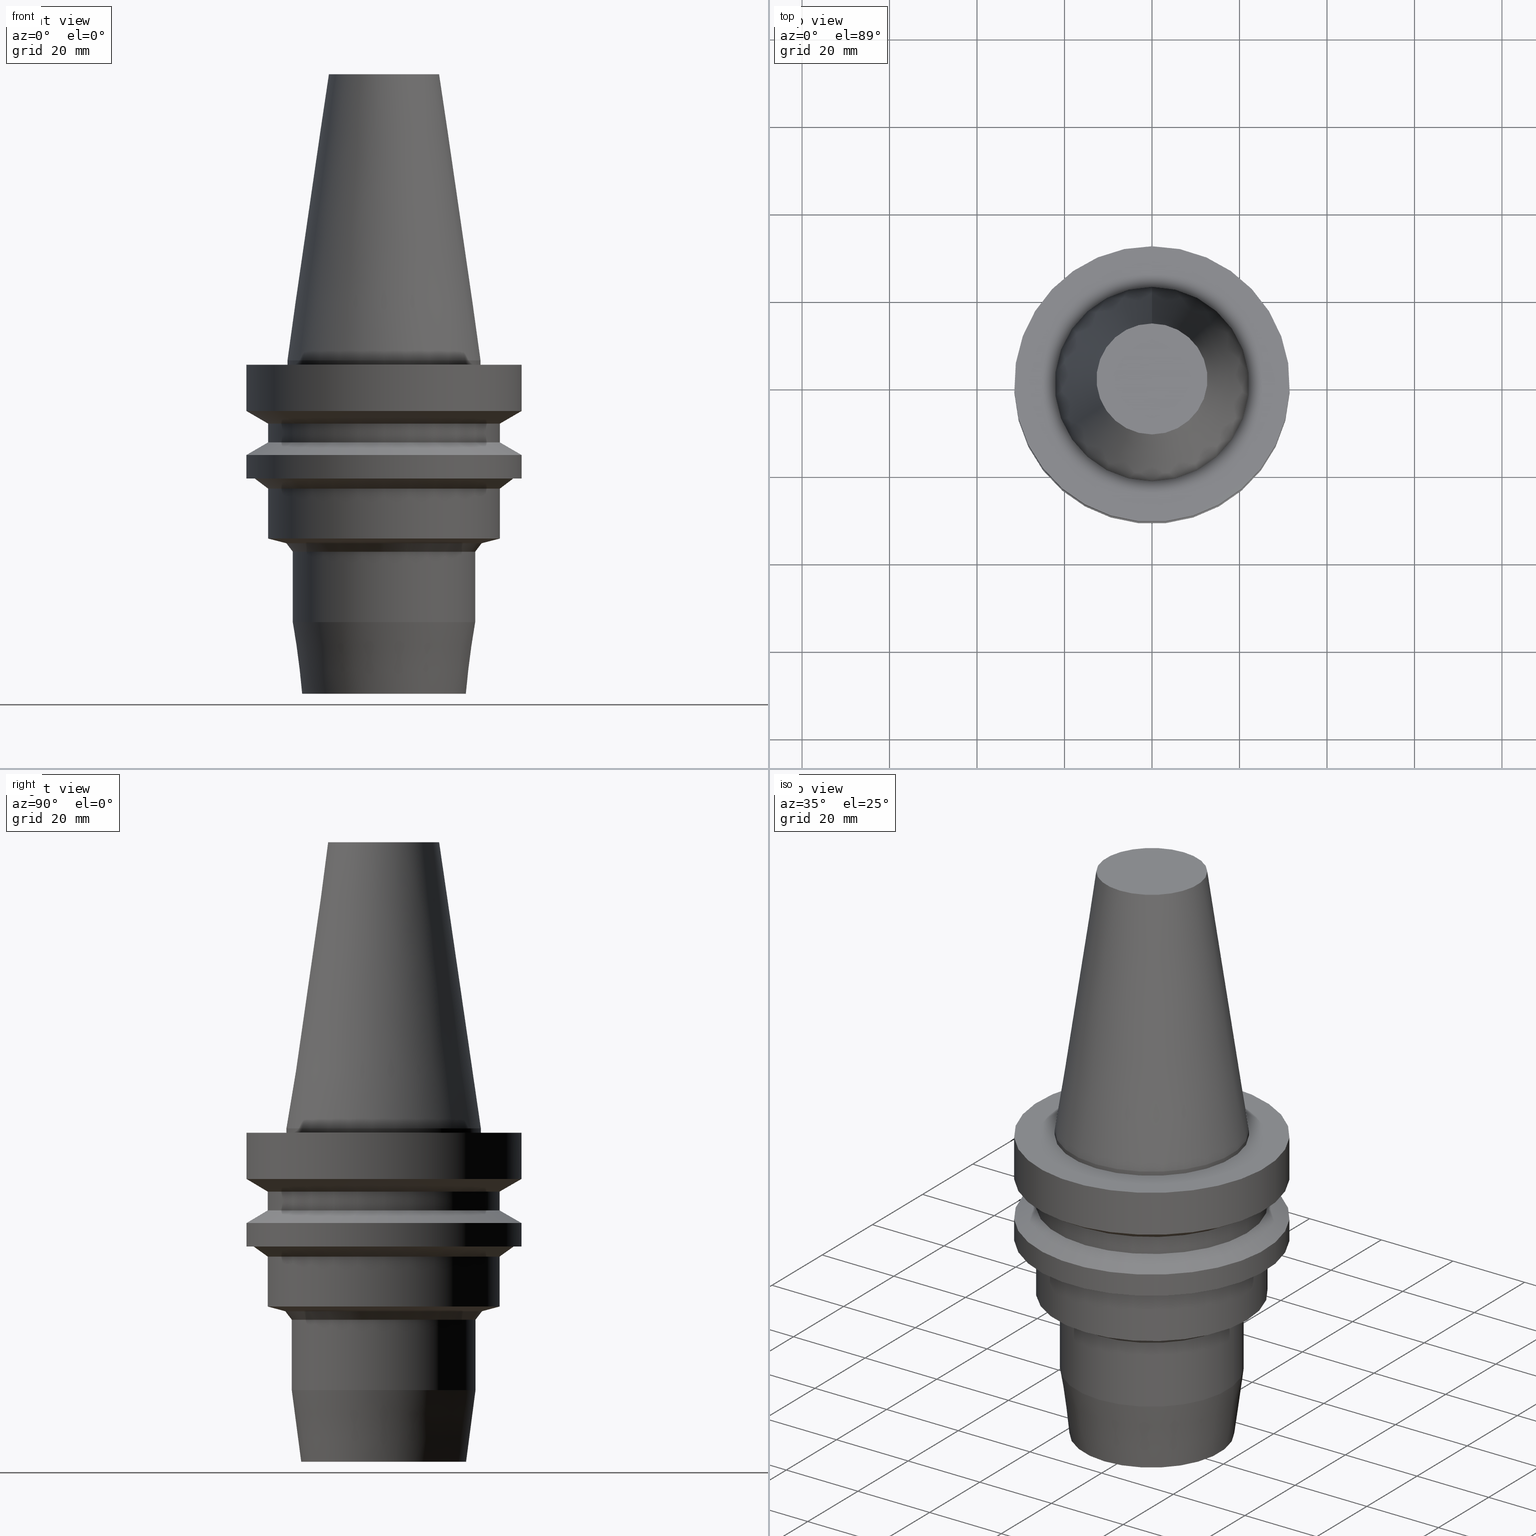
[diagram: canonical four-view strip — front | top / right | iso, engineering-drawing reading convention]
A machine part, canonical four-view strip (front | top / right | iso — engineering-drawing reading convention). The complete STEP part file that produces these views, byte-faithful:
ISO-10303-21;
HEADER;
FILE_DESCRIPTION((''),'1');
FILE_NAME('V:/90_\X2\53D65F9730C730FC30BF\X0\/00_\X2\6DE18DEF30C730FC30BF\X0\/ALL/BBT-BKUS\X2\FF76FF80FF9BFF78FF9E752852A05DE556F3\X0\201801/BBT40-HDC/BBT40-HDC.750-3.stp','2018-02-07T05:16:16',(''),(''),'Spatial Interop R21 SP3','Kubotek KeyCreator 2011 V10.0.2 (22737)',' ');
FILE_SCHEMA(('automotive_design'));
ENDSEC;
DATA;
#1=MECHANICAL_DESIGN_GEOMETRIC_PRESENTATION_REPRESENTATION(' ',(#10,#11,#12,#13,#14,#15,#16,#17,#18,#19,#20,#21,#22,#23,#24,#25,#26,#27,#28,#29,#30,#31,#32,#33,#34,#35,#36,#37,#38,#39,#40,#41,#42,#43),#6);
#2=PRODUCT_DEFINITION_CONTEXT('',#44,'design');
#3=APPLICATION_PROTOCOL_DEFINITION('INTERNATIONAL STANDARD','automotive_design',1994,#44);
#4=PRODUCT_CATEGORY_RELATIONSHIP('NONE','NONE',#45,#46);
#5=SHAPE_DEFINITION_REPRESENTATION(#47,#48);
#6= (GEOMETRIC_REPRESENTATION_CONTEXT(3)GLOBAL_UNCERTAINTY_ASSIGNED_CONTEXT((#51))GLOBAL_UNIT_ASSIGNED_CONTEXT((#53,#54,#55))REPRESENTATION_CONTEXT('NONE','WORKSPACE'));
#10=STYLED_ITEM('',(#57),#58);
#11=STYLED_ITEM('',(#59),#60);
#12=STYLED_ITEM('',(#61,#62),#63);
#13=STYLED_ITEM('',(#64,#65),#66);
#14=STYLED_ITEM('',(#67,#68),#69);
#15=STYLED_ITEM('',(#70,#71),#72);
#16=STYLED_ITEM('',(#73),#74);
#17=STYLED_ITEM('',(#75,#76),#77);
#18=STYLED_ITEM('',(#78,#79),#80);
#19=STYLED_ITEM('',(#81),#82);
#20=STYLED_ITEM('',(#83,#84),#85);
#21=STYLED_ITEM('',(#86,#87),#88);
#22=STYLED_ITEM('',(#89,#90),#91);
#23=STYLED_ITEM('',(#92,#93),#94);
#24=STYLED_ITEM('',(#95),#96);
#25=STYLED_ITEM('',(#97,#98),#99);
#26=STYLED_ITEM('',(#100,#101),#102);
#27=STYLED_ITEM('',(#103),#104);
#28=STYLED_ITEM('',(#105),#106);
#29=STYLED_ITEM('',(#107,#108),#109);
#30=STYLED_ITEM('',(#110),#111);
#31=STYLED_ITEM('',(#112,#113),#114);
#32=STYLED_ITEM('',(#115),#116);
#33=STYLED_ITEM('',(#117,#118),#119);
#34=STYLED_ITEM('',(#120),#121);
#35=STYLED_ITEM('',(#122),#123);
#36=STYLED_ITEM('',(#124),#125);
#37=STYLED_ITEM('',(#126),#127);
#38=STYLED_ITEM('',(#128),#129);
#39=STYLED_ITEM('',(#130),#131);
#40=STYLED_ITEM('',(#132),#133);
#41=STYLED_ITEM('',(#134,#135),#136);
#42=STYLED_ITEM('',(#137,#138),#139);
#43=STYLED_ITEM('',(#140,#141),#142);
#44=APPLICATION_CONTEXT(' ');
#45=PRODUCT_CATEGORY('part','NONE');
#46=PRODUCT_RELATED_PRODUCT_CATEGORY('detail',' ',(#143));
#47=PRODUCT_DEFINITION_SHAPE('NONE','NONE',#144);
#48=ADVANCED_BREP_SHAPE_REPRESENTATION('Unnamed[1]',(#136,#145),#6);
#51=UNCERTAINTY_MEASURE_WITH_UNIT(LENGTH_MEASURE(1.0E-006),#53,'','');
#53= (CONVERSION_BASED_UNIT('MILLIMETRE',#148)LENGTH_UNIT()NAMED_UNIT(#151));
#54= (NAMED_UNIT(#153)PLANE_ANGLE_UNIT()SI_UNIT($,.RADIAN.));
#55= (NAMED_UNIT(#153)SOLID_ANGLE_UNIT()SI_UNIT($,.STERADIAN.));
#57=PRESENTATION_STYLE_ASSIGNMENT((#159));
#58=EDGE_CURVE('Unnamed[1]',#160,#160,#161,.T.);
#59=PRESENTATION_STYLE_ASSIGNMENT((#162));
#60=EDGE_CURVE('Unnamed[1]',#163,#163,#164,.T.);
#61=PRESENTATION_STYLE_ASSIGNMENT((#165));
#62=PRESENTATION_STYLE_ASSIGNMENT((#166));
#63=ADVANCED_FACE('Unnamed[1]',(#167),#168,.T.);
#64=PRESENTATION_STYLE_ASSIGNMENT((#169));
#65=PRESENTATION_STYLE_ASSIGNMENT((#170));
#66=ADVANCED_FACE('Unnamed[1]',(#171,#172),#173,.T.);
#67=PRESENTATION_STYLE_ASSIGNMENT((#174));
#68=PRESENTATION_STYLE_ASSIGNMENT((#175));
#69=ADVANCED_FACE('Unnamed[1]',(#176,#177),#178,.T.);
#70=PRESENTATION_STYLE_ASSIGNMENT((#179));
#71=PRESENTATION_STYLE_ASSIGNMENT((#180));
#72=ADVANCED_FACE('Unnamed[1]',(#181,#182),#183,.T.);
#73=PRESENTATION_STYLE_ASSIGNMENT((#184));
#74=EDGE_CURVE('Unnamed[1]',#185,#185,#186,.T.);
#75=PRESENTATION_STYLE_ASSIGNMENT((#187));
#76=PRESENTATION_STYLE_ASSIGNMENT((#188));
#77=ADVANCED_FACE('Unnamed[1]',(#189,#190),#191,.T.);
#78=PRESENTATION_STYLE_ASSIGNMENT((#192));
#79=PRESENTATION_STYLE_ASSIGNMENT((#193));
#80=ADVANCED_FACE('Unnamed[1]',(#194,#195),#196,.T.);
#81=PRESENTATION_STYLE_ASSIGNMENT((#197));
#82=EDGE_CURVE('Unnamed[1]',#198,#198,#199,.T.);
#83=PRESENTATION_STYLE_ASSIGNMENT((#200));
#84=PRESENTATION_STYLE_ASSIGNMENT((#201));
#85=ADVANCED_FACE('Unnamed[1]',(#202),#203,.T.);
#86=PRESENTATION_STYLE_ASSIGNMENT((#204));
#87=PRESENTATION_STYLE_ASSIGNMENT((#205));
#88=ADVANCED_FACE('Unnamed[1]',(#206,#207),#208,.T.);
#89=PRESENTATION_STYLE_ASSIGNMENT((#209));
#90=PRESENTATION_STYLE_ASSIGNMENT((#210));
#91=ADVANCED_FACE('Unnamed[1]',(#211,#212),#213,.T.);
#92=PRESENTATION_STYLE_ASSIGNMENT((#214));
#93=PRESENTATION_STYLE_ASSIGNMENT((#215));
#94=ADVANCED_FACE('Unnamed[1]',(#216,#217),#218,.T.);
#95=PRESENTATION_STYLE_ASSIGNMENT((#219));
#96=EDGE_CURVE('Unnamed[1]',#220,#220,#221,.T.);
#97=PRESENTATION_STYLE_ASSIGNMENT((#222));
#98=PRESENTATION_STYLE_ASSIGNMENT((#223));
#99=ADVANCED_FACE('Unnamed[1]',(#224,#225),#226,.T.);
#100=PRESENTATION_STYLE_ASSIGNMENT((#227));
#101=PRESENTATION_STYLE_ASSIGNMENT((#228));
#102=ADVANCED_FACE('Unnamed[1]',(#229,#230),#231,.T.);
#103=PRESENTATION_STYLE_ASSIGNMENT((#232));
#104=EDGE_CURVE('Unnamed[1]',#233,#233,#234,.T.);
#105=PRESENTATION_STYLE_ASSIGNMENT((#235));
#106=EDGE_CURVE('Unnamed[1]',#236,#236,#237,.T.);
#107=PRESENTATION_STYLE_ASSIGNMENT((#238));
#108=PRESENTATION_STYLE_ASSIGNMENT((#239));
#109=ADVANCED_FACE('Unnamed[1]',(#240,#241),#242,.T.);
#110=PRESENTATION_STYLE_ASSIGNMENT((#243));
#111=EDGE_CURVE('Unnamed[1]',#244,#244,#245,.T.);
#112=PRESENTATION_STYLE_ASSIGNMENT((#246));
#113=PRESENTATION_STYLE_ASSIGNMENT((#247));
#114=ADVANCED_FACE('Unnamed[1]',(#248,#249),#250,.T.);
#115=PRESENTATION_STYLE_ASSIGNMENT((#251));
#116=EDGE_CURVE('Unnamed[1]',#252,#252,#253,.T.);
#117=PRESENTATION_STYLE_ASSIGNMENT((#254));
#118=PRESENTATION_STYLE_ASSIGNMENT((#255));
#119=ADVANCED_FACE('Unnamed[1]',(#256,#257),#258,.T.);
#120=PRESENTATION_STYLE_ASSIGNMENT((#259));
#121=EDGE_CURVE('Unnamed[1]',#260,#260,#261,.T.);
#122=PRESENTATION_STYLE_ASSIGNMENT((#262));
#123=EDGE_CURVE('Unnamed[1]',#263,#263,#264,.T.);
#124=PRESENTATION_STYLE_ASSIGNMENT((#265));
#125=EDGE_CURVE('Unnamed[1]',#266,#266,#267,.T.);
#126=PRESENTATION_STYLE_ASSIGNMENT((#268));
#127=EDGE_CURVE('Unnamed[1]',#269,#269,#270,.T.);
#128=PRESENTATION_STYLE_ASSIGNMENT((#271));
#129=EDGE_CURVE('Unnamed[1]',#272,#272,#273,.T.);
#130=PRESENTATION_STYLE_ASSIGNMENT((#274));
#131=EDGE_CURVE('Unnamed[1]',#275,#275,#276,.T.);
#132=PRESENTATION_STYLE_ASSIGNMENT((#277));
#133=EDGE_CURVE('Unnamed[1]',#278,#278,#279,.T.);
#134=PRESENTATION_STYLE_ASSIGNMENT((#280));
#135=PRESENTATION_STYLE_ASSIGNMENT((#281));
#136=MANIFOLD_SOLID_BREP('Unnamed[1]',#282);
#137=PRESENTATION_STYLE_ASSIGNMENT((#283));
#138=PRESENTATION_STYLE_ASSIGNMENT((#284));
#139=ADVANCED_FACE('Unnamed[1]',(#285,#286),#287,.T.);
#140=PRESENTATION_STYLE_ASSIGNMENT((#288));
#141=PRESENTATION_STYLE_ASSIGNMENT((#289));
#142=ADVANCED_FACE('Unnamed[1]',(#290,#291),#292,.T.);
#143=PRODUCT('Unnamed[1]','Unnamed[1]','PART-Unnamed[1]-DESC',(#293));
#144=PRODUCT_DEFINITION('NONE','NONE',#294,#2);
#145=AXIS2_PLACEMENT_3D('',#295,#296,#297);
#148=LENGTH_MEASURE_WITH_UNIT(LENGTH_MEASURE(1.0),#298);
#151=DIMENSIONAL_EXPONENTS(1.0,0.0,0.0,0.0,0.0,0.0,0.0);
#153=DIMENSIONAL_EXPONENTS(0.0,0.0,0.0,0.0,0.0,0.0,0.0);
#159=CURVE_STYLE('',#299,POSITIVE_LENGTH_MEASURE(1000.0),#300);
#160=VERTEX_POINT('',#301);
#161=CIRCLE('',#302,31.5000000000007);
#162=CURVE_STYLE('',#303,POSITIVE_LENGTH_MEASURE(1000.0),#304);
#163=VERTEX_POINT('',#305);
#164=CIRCLE('',#306,31.5000000000004);
#165=SURFACE_STYLE_USAGE(.BOTH.,#307);
#166=CURVE_STYLE('',#308,POSITIVE_LENGTH_MEASURE(1000.0),#309);
#167=FACE_OUTER_BOUND('',#310,.T.);
#168=PLANE('',#311);
#169=SURFACE_STYLE_USAGE(.BOTH.,#312);
#170=CURVE_STYLE('',#313,POSITIVE_LENGTH_MEASURE(1000.0),#314);
#171=FACE_BOUND('',#315,.T.);
#172=FACE_BOUND('',#316,.T.);
#173=CONICAL_SURFACE('',#317,17.4562500000001,0.144812498238936);
#174=SURFACE_STYLE_USAGE(.BOTH.,#318);
#175=CURVE_STYLE('',#319,POSITIVE_LENGTH_MEASURE(1000.0),#320);
#176=FACE_BOUND('',#321,.T.);
#177=FACE_BOUND('',#322,.T.);
#178=CONICAL_SURFACE('',#323,29.0000000000004,1.04719755119651);
#179=SURFACE_STYLE_USAGE(.BOTH.,#324);
#180=CURVE_STYLE('',#325,POSITIVE_LENGTH_MEASURE(1000.0),#326);
#181=FACE_BOUND('',#327,.T.);
#182=FACE_BOUND('',#328,.T.);
#183=CONICAL_SURFACE('',#329,19.9227653025984,0.130899693899637);
#184=CURVE_STYLE('',#330,POSITIVE_LENGTH_MEASURE(1000.0),#331);
#185=VERTEX_POINT('',#332);
#186=CIRCLE('',#333,18.8455306051986);
#187=SURFACE_STYLE_USAGE(.BOTH.,#334);
#188=CURVE_STYLE('',#335,POSITIVE_LENGTH_MEASURE(1000.0),#336);
#189=FACE_BOUND('',#337,.T.);
#190=FACE_BOUND('',#338,.T.);
#191=CYLINDRICAL_SURFACE('',#339,31.5);
#192=SURFACE_STYLE_USAGE(.BOTH.,#340);
#193=CURVE_STYLE('',#341,POSITIVE_LENGTH_MEASURE(1000.0),#342);
#194=FACE_BOUND('',#343,.T.);
#195=FACE_BOUND('',#344,.T.);
#196=CONICAL_SURFACE('',#345,28.9999999999999,1.04719755119657);
#197=CURVE_STYLE('',#346,POSITIVE_LENGTH_MEASURE(1000.0),#347);
#198=VERTEX_POINT('',#348);
#199=CIRCLE('',#349,31.5000000000004);
#200=SURFACE_STYLE_USAGE(.BOTH.,#350);
#201=CURVE_STYLE('',#351,POSITIVE_LENGTH_MEASURE(1000.0),#352);
#202=FACE_OUTER_BOUND('',#353,.T.);
#203=PLANE('',#354);
#204=SURFACE_STYLE_USAGE(.BOTH.,#355);
#205=CURVE_STYLE('',#356,POSITIVE_LENGTH_MEASURE(1000.0),#357);
#206=FACE_BOUND('',#358,.T.);
#207=FACE_BOUND('',#359,.T.);
#208=CONICAL_SURFACE('',#360,24.4911809548945,1.30899693899579);
#209=SURFACE_STYLE_USAGE(.BOTH.,#361);
#210=CURVE_STYLE('',#362,POSITIVE_LENGTH_MEASURE(1000.0),#363);
#211=FACE_BOUND('',#364,.T.);
#212=FACE_BOUND('',#365,.T.);
#213=CYLINDRICAL_SURFACE('',#366,20.9999999999961);
#214=SURFACE_STYLE_USAGE(.BOTH.,#367);
#215=CURVE_STYLE('',#368,POSITIVE_LENGTH_MEASURE(1000.0),#369);
#216=FACE_BOUND('',#370,.T.);
#217=FACE_BOUND('',#371,.T.);
#218=CYLINDRICAL_SURFACE('',#372,31.5000000000005);
#219=CURVE_STYLE('',#373,POSITIVE_LENGTH_MEASURE(1000.0),#374);
#220=VERTEX_POINT('',#375);
#221=CIRCLE('',#376,20.9999999999983);
#222=SURFACE_STYLE_USAGE(.BOTH.,#377);
#223=CURVE_STYLE('',#378,POSITIVE_LENGTH_MEASURE(1000.0),#379);
#224=FACE_BOUND('',#380,.T.);
#225=FACE_BOUND('',#381,.T.);
#226=CYLINDRICAL_SURFACE('',#382,26.5);
#227=SURFACE_STYLE_USAGE(.BOTH.,#383);
#228=CURVE_STYLE('',#384,POSITIVE_LENGTH_MEASURE(1000.0),#385);
#229=FACE_BOUND('',#386,.T.);
#230=FACE_OUTER_BOUND('',#387,.T.);
#231=PLANE('',#388);
#232=CURVE_STYLE('',#389,POSITIVE_LENGTH_MEASURE(1000.0),#390);
#233=VERTEX_POINT('',#391);
#234=CIRCLE('',#392,12.6875000000001);
#235=CURVE_STYLE('',#393,POSITIVE_LENGTH_MEASURE(1000.0),#394);
#236=VERTEX_POINT('',#395);
#237=CIRCLE('',#396,26.5);
#238=SURFACE_STYLE_USAGE(.BOTH.,#397);
#239=CURVE_STYLE('',#398,POSITIVE_LENGTH_MEASURE(1000.0),#399);
#240=FACE_BOUND('',#400,.T.);
#241=FACE_BOUND('',#401,.T.);
#242=CONICAL_SURFACE('',#402,21.7411809548915,0.654498469497884);
#243=CURVE_STYLE('',#403,POSITIVE_LENGTH_MEASURE(1000.0),#404);
#244=VERTEX_POINT('',#405);
#245=CIRCLE('',#406,26.4999999999994);
#246=SURFACE_STYLE_USAGE(.BOTH.,#407);
#247=CURVE_STYLE('',#408,POSITIVE_LENGTH_MEASURE(1000.0),#409);
#248=FACE_OUTER_BOUND('',#410,.T.);
#249=FACE_BOUND('',#411,.T.);
#250=PLANE('',#412);
#251=CURVE_STYLE('',#413,POSITIVE_LENGTH_MEASURE(1000.0),#414);
#252=VERTEX_POINT('',#415);
#253=CIRCLE('',#416,26.5);
#254=SURFACE_STYLE_USAGE(.BOTH.,#417);
#255=CURVE_STYLE('',#418,POSITIVE_LENGTH_MEASURE(1000.0),#419);
#256=FACE_BOUND('',#420,.T.);
#257=FACE_BOUND('',#421,.T.);
#258=CYLINDRICAL_SURFACE('',#422,22.225);
#259=CURVE_STYLE('',#423,POSITIVE_LENGTH_MEASURE(1000.0),#424);
#260=VERTEX_POINT('',#425);
#261=CIRCLE('',#426,26.5);
#262=CURVE_STYLE('',#427,POSITIVE_LENGTH_MEASURE(1000.0),#428);
#263=VERTEX_POINT('',#429);
#264=CIRCLE('',#430,22.482361909789);
#265=CURVE_STYLE('',#431,POSITIVE_LENGTH_MEASURE(1000.0),#432);
#266=VERTEX_POINT('',#433);
#267=CIRCLE('',#434,31.4999999999997);
#268=CURVE_STYLE('',#435,POSITIVE_LENGTH_MEASURE(1000.0),#436);
#269=VERTEX_POINT('',#437);
#270=CIRCLE('',#438,22.225);
#271=CURVE_STYLE('',#439,POSITIVE_LENGTH_MEASURE(1000.0),#440);
#272=VERTEX_POINT('',#441);
#273=CIRCLE('',#442,29.7145262827772);
#274=CURVE_STYLE('',#443,POSITIVE_LENGTH_MEASURE(1000.0),#444);
#275=VERTEX_POINT('',#445);
#276=CIRCLE('',#446,22.225);
#277=CURVE_STYLE('',#447,POSITIVE_LENGTH_MEASURE(1000.0),#448);
#278=VERTEX_POINT('',#449);
#279=CIRCLE('',#450,20.999999999994);
#280=SURFACE_STYLE_USAGE(.BOTH.,#451);
#281=CURVE_STYLE('',#452,POSITIVE_LENGTH_MEASURE(1000.0),#453);
#282=CLOSED_SHELL('',(#63,#66,#119,#114,#77,#80,#142,#69,#94,#102,#139,#99,#88,#109,#91,#72,#85));
#283=SURFACE_STYLE_USAGE(.BOTH.,#454);
#284=CURVE_STYLE('',#455,POSITIVE_LENGTH_MEASURE(1000.0),#456);
#285=FACE_BOUND('',#457,.T.);
#286=FACE_BOUND('',#458,.T.);
#287=CONICAL_SURFACE('',#459,28.1072631413886,0.947790517613511);
#288=SURFACE_STYLE_USAGE(.BOTH.,#460);
#289=CURVE_STYLE('',#461,POSITIVE_LENGTH_MEASURE(1000.0),#462);
#290=FACE_BOUND('',#463,.T.);
#291=FACE_BOUND('',#464,.T.);
#292=CYLINDRICAL_SURFACE('',#465,26.4999999999997);
#293=PRODUCT_CONTEXT('',#44,'mechanical');
#294=PRODUCT_DEFINITION_FORMATION_WITH_SPECIFIED_SOURCE(' ','NONE',#143,.NOT_KNOWN.);
#295=CARTESIAN_POINT('',(0.0,0.0,0.0));
#296=DIRECTION('',(0.0,0.0,1.0));
#297=DIRECTION('',(1.0,0.0,0.0));
#298= (NAMED_UNIT(#151)LENGTH_UNIT()SI_UNIT(.MILLI.,.METRE.));
#299=DRAUGHTING_PRE_DEFINED_CURVE_FONT('continuous');
#300=COLOUR_RGB('',0.0,1.0,0.0);
#301=CARTESIAN_POINT('',(1.32473071268174E-015,31.5000000000007,-21.6344943473346));
#302=AXIS2_PLACEMENT_3D('',#467,#468,#469);
#303=DRAUGHTING_PRE_DEFINED_CURVE_FONT('continuous');
#304=COLOUR_RGB('',0.0,1.0,0.0);
#305=CARTESIAN_POINT('',(1.65327317884891E-015,31.5000000000004,-26.9999999999998));
#306=AXIS2_PLACEMENT_3D('',#470,#471,#472);
#307=SURFACE_SIDE_STYLE('',(#473));
#308=DRAUGHTING_PRE_DEFINED_CURVE_FONT('continuous');
#309=COLOUR_RGB('',0.0,1.0,0.0);
#310=EDGE_LOOP('',(#474));
#311=AXIS2_PLACEMENT_3D('',#475,#476,#477);
#312=SURFACE_SIDE_STYLE('',(#478));
#313=DRAUGHTING_PRE_DEFINED_CURVE_FONT('continuous');
#314=COLOUR_RGB('',0.0,1.0,0.0);
#315=EDGE_LOOP('',(#479));
#316=EDGE_LOOP('',(#480));
#317=AXIS2_PLACEMENT_3D('',#481,#482,#483);
#318=SURFACE_SIDE_STYLE('',(#484));
#319=DRAUGHTING_PRE_DEFINED_CURVE_FONT('continuous');
#320=COLOUR_RGB('',0.0,1.0,0.0);
#321=EDGE_LOOP('',(#485));
#322=EDGE_LOOP('',(#486));
#323=AXIS2_PLACEMENT_3D('',#487,#488,#489);
#324=SURFACE_SIDE_STYLE('',(#490));
#325=DRAUGHTING_PRE_DEFINED_CURVE_FONT('continuous');
#326=COLOUR_RGB('',0.0,1.0,0.0);
#327=EDGE_LOOP('',(#491));
#328=EDGE_LOOP('',(#492));
#329=AXIS2_PLACEMENT_3D('',#493,#494,#495);
#330=DRAUGHTING_PRE_DEFINED_CURVE_FONT('continuous');
#331=COLOUR_RGB('',0.0,1.0,0.0);
#332=CARTESIAN_POINT('',(4.66591020610428E-015,18.8455306051986,-76.2000963764062));
#333=AXIS2_PLACEMENT_3D('',#496,#497,#498);
#334=SURFACE_SIDE_STYLE('',(#499));
#335=DRAUGHTING_PRE_DEFINED_CURVE_FONT('continuous');
#336=COLOUR_RGB('',0.0,1.0,0.0);
#337=EDGE_LOOP('',(#500));
#338=EDGE_LOOP('',(#501));
#339=AXIS2_PLACEMENT_3D('',#502,#503,#504);
#340=SURFACE_SIDE_STYLE('',(#505));
#341=DRAUGHTING_PRE_DEFINED_CURVE_FONT('continuous');
#342=COLOUR_RGB('',0.0,1.0,0.0);
#343=EDGE_LOOP('',(#506));
#344=EDGE_LOOP('',(#507));
#345=AXIS2_PLACEMENT_3D('',#508,#509,#510);
#346=DRAUGHTING_PRE_DEFINED_CURVE_FONT('continuous');
#347=COLOUR_RGB('',0.0,1.0,0.0);
#348=CARTESIAN_POINT('',(7.08182973902924E-016,31.5000000000004,-11.5655056526664));
#349=AXIS2_PLACEMENT_3D('',#511,#512,#513);
#350=SURFACE_SIDE_STYLE('',(#514));
#351=DRAUGHTING_PRE_DEFINED_CURVE_FONT('continuous');
#352=COLOUR_RGB('',0.0,1.0,0.0);
#353=EDGE_LOOP('',(#515));
#354=AXIS2_PLACEMENT_3D('',#516,#517,#518);
#355=SURFACE_SIDE_STYLE('',(#519));
#356=DRAUGHTING_PRE_DEFINED_CURVE_FONT('continuous');
#357=COLOUR_RGB('',0.0,1.0,0.0);
#358=EDGE_LOOP('',(#520));
#359=EDGE_LOOP('',(#521));
#360=AXIS2_PLACEMENT_3D('',#522,#523,#524);
#361=SURFACE_SIDE_STYLE('',(#525));
#362=DRAUGHTING_PRE_DEFINED_CURVE_FONT('continuous');
#363=COLOUR_RGB('',0.0,1.0,0.0);
#364=EDGE_LOOP('',(#526));
#365=EDGE_LOOP('',(#527));
#366=AXIS2_PLACEMENT_3D('',#528,#529,#530);
#367=SURFACE_SIDE_STYLE('',(#531));
#368=DRAUGHTING_PRE_DEFINED_CURVE_FONT('continuous');
#369=COLOUR_RGB('',0.0,1.0,0.0);
#370=EDGE_LOOP('',(#532));
#371=EDGE_LOOP('',(#533));
#372=AXIS2_PLACEMENT_3D('',#534,#535,#536);
#373=DRAUGHTING_PRE_DEFINED_CURVE_FONT('continuous');
#374=COLOUR_RGB('',0.0,1.0,0.0);
#375=CARTESIAN_POINT('',(3.66385399883422E-015,20.9999999999983,-59.8352766101237));
#376=AXIS2_PLACEMENT_3D('',#537,#538,#539);
#377=SURFACE_SIDE_STYLE('',(#540));
#378=DRAUGHTING_PRE_DEFINED_CURVE_FONT('continuous');
#379=COLOUR_RGB('',0.0,1.0,0.0);
#380=EDGE_LOOP('',(#541));
#381=EDGE_LOOP('',(#542));
#382=AXIS2_PLACEMENT_3D('',#543,#544,#545);
#383=SURFACE_SIDE_STYLE('',(#546));
#384=DRAUGHTING_PRE_DEFINED_CURVE_FONT('continuous');
#385=COLOUR_RGB('',0.0,1.0,0.0);
#386=EDGE_LOOP('',(#547));
#387=EDGE_LOOP('',(#548));
#388=AXIS2_PLACEMENT_3D('',#549,#550,#551);
#389=DRAUGHTING_PRE_DEFINED_CURVE_FONT('continuous');
#390=COLOUR_RGB('',0.0,1.0,0.0);
#391=CARTESIAN_POINT('',(-4.00459503321185E-015,12.6875000000002,65.4000000000001));
#392=AXIS2_PLACEMENT_3D('',#552,#553,#554);
#393=DRAUGHTING_PRE_DEFINED_CURVE_FONT('continuous');
#394=COLOUR_RGB('',0.0,1.0,0.0);
#395=CARTESIAN_POINT('',(1.79468911203177E-015,26.5,-29.3094974531644));
#396=AXIS2_PLACEMENT_3D('',#555,#556,#557);
#397=SURFACE_SIDE_STYLE('',(#558));
#398=DRAUGHTING_PRE_DEFINED_CURVE_FONT('continuous');
#399=COLOUR_RGB('',0.0,1.0,0.0);
#400=EDGE_LOOP('',(#559));
#401=EDGE_LOOP('',(#560));
#402=AXIS2_PLACEMENT_3D('',#561,#562,#563);
#403=DRAUGHTING_PRE_DEFINED_CURVE_FONT('continuous');
#404=COLOUR_RGB('',0.0,1.0,0.0);
#405=CARTESIAN_POINT('',(8.8494551369045E-016,26.4999999999995,-14.4522569986152));
#406=AXIS2_PLACEMENT_3D('',#564,#565,#566);
#407=SURFACE_SIDE_STYLE('',(#567));
#408=DRAUGHTING_PRE_DEFINED_CURVE_FONT('continuous');
#409=COLOUR_RGB('',0.0,1.0,0.0);
#410=EDGE_LOOP('',(#568));
#411=EDGE_LOOP('',(#569));
#412=AXIS2_PLACEMENT_3D('',#570,#571,#572);
#413=DRAUGHTING_PRE_DEFINED_CURVE_FONT('continuous');
#414=COLOUR_RGB('',0.0,1.0,0.0);
#415=CARTESIAN_POINT('',(1.1479681728942E-015,26.5,-18.7477430013855));
#416=AXIS2_PLACEMENT_3D('',#573,#574,#575);
#417=SURFACE_SIDE_STYLE('',(#576));
#418=DRAUGHTING_PRE_DEFINED_CURVE_FONT('continuous');
#419=COLOUR_RGB('',0.0,1.0,0.0);
#420=EDGE_LOOP('',(#577));
#421=EDGE_LOOP('',(#578));
#422=AXIS2_PLACEMENT_3D('',#579,#580,#581);
#423=DRAUGHTING_PRE_DEFINED_CURVE_FONT('continuous');
#424=COLOUR_RGB('',0.0,1.0,0.0);
#425=CARTESIAN_POINT('',(2.49377128932141E-015,26.5,-40.7263758180345));
#426=AXIS2_PLACEMENT_3D('',#582,#583,#584);
#427=DRAUGHTING_PRE_DEFINED_CURVE_FONT('continuous');
#428=COLOUR_RGB('',0.0,1.0,0.0);
#429=CARTESIAN_POINT('',(2.55968930438875E-015,22.482361909789,-41.8028986997869));
#430=AXIS2_PLACEMENT_3D('',#585,#586,#587);
#431=DRAUGHTING_PRE_DEFINED_CURVE_FONT('continuous');
#432=COLOUR_RGB('',0.0,1.0,0.0);
#433=CARTESIAN_POINT('',(6.12323399573568E-017,31.4999999999997,-0.999999999999825));
#434=AXIS2_PLACEMENT_3D('',#588,#589,#590);
#435=DRAUGHTING_PRE_DEFINED_CURVE_FONT('continuous');
#436=COLOUR_RGB('',0.0,1.0,0.0);
#437=CARTESIAN_POINT('',(6.12323399573622E-017,22.2250000000001,-0.999999999999912));
#438=AXIS2_PLACEMENT_3D('',#591,#592,#593);
#439=DRAUGHTING_PRE_DEFINED_CURVE_FONT('continuous');
#440=COLOUR_RGB('',0.0,1.0,0.0);
#441=CARTESIAN_POINT('',(1.65327317884891E-015,29.7145262827772,-26.9999999999998));
#442=AXIS2_PLACEMENT_3D('',#594,#595,#596);
#443=DRAUGHTING_PRE_DEFINED_CURVE_FONT('continuous');
#444=COLOUR_RGB('',0.0,1.0,0.0);
#445=CARTESIAN_POINT('',(1.71319921032766E-029,22.2250000000001,-2.8153873565375E-013));
#446=AXIS2_PLACEMENT_3D('',#597,#598,#599);
#447=DRAUGHTING_PRE_DEFINED_CURVE_FONT('continuous');
#448=COLOUR_RGB('',0.0,1.0,0.0);
#449=CARTESIAN_POINT('',(2.67798110152662E-015,20.999999999994,-43.7347503523651));
#450=AXIS2_PLACEMENT_3D('',#600,#601,#602);
#451=SURFACE_SIDE_STYLE('',(#603));
#452=DRAUGHTING_PRE_DEFINED_CURVE_FONT('continuous');
#453=COLOUR_RGB('',0.0,1.0,0.0);
#454=SURFACE_SIDE_STYLE('',(#604));
#455=DRAUGHTING_PRE_DEFINED_CURVE_FONT('continuous');
#456=COLOUR_RGB('',0.0,1.0,0.0);
#457=EDGE_LOOP('',(#605));
#458=EDGE_LOOP('',(#606));
#459=AXIS2_PLACEMENT_3D('',#607,#608,#609);
#460=SURFACE_SIDE_STYLE('',(#610));
#461=DRAUGHTING_PRE_DEFINED_CURVE_FONT('continuous');
#462=COLOUR_RGB('',0.0,1.0,0.0);
#463=EDGE_LOOP('',(#611));
#464=EDGE_LOOP('',(#612));
#465=AXIS2_PLACEMENT_3D('',#613,#614,#615);
#467=CARTESIAN_POINT('',(1.32473071268174E-015,1.81843579211261E-014,-21.6344943473346));
#468=DIRECTION('',(6.12323399573677E-017,-6.70009952006012E-016,-1.0));
#469=DIRECTION('',(3.61991244252829E-032,1.0,-6.70009952006012E-016));
#470=CARTESIAN_POINT('',(1.65327317884891E-015,1.45894157362957E-014,-26.9999999999997));
#471=DIRECTION('',(6.12323399573676E-017,-6.70009952006019E-016,-1.0));
#472=DIRECTION('',(3.6199124425289E-032,1.0,-6.70009952006019E-016));
#473=SURFACE_STYLE_FILL_AREA(#616);
#474=ORIENTED_EDGE('',*,*,#104,.F.);
#475=CARTESIAN_POINT('',(-4.00459503321185E-015,6.34375000000014,65.4000000000001));
#476=DIRECTION('',(-6.12323399573677E-017,9.97602686800683E-016,1.0));
#477=DIRECTION('',(-5.62583941297938E-032,-1.0,9.97602686800683E-016));
#478=SURFACE_STYLE_FILL_AREA(#617);
#479=ORIENTED_EDGE('',*,*,#131,.F.);
#480=ORIENTED_EDGE('',*,*,#104,.T.);
#481=CARTESIAN_POINT('',(-2.00229751660592E-015,5.45890098710572E-014,32.6999999999999));
#482=DIRECTION('',(6.12323399573677E-017,-6.70009952006028E-016,-1.0));
#483=DIRECTION('',(3.61991244252817E-032,1.0,-6.70009952006028E-016));
#484=SURFACE_STYLE_FILL_AREA(#618);
#485=ORIENTED_EDGE('',*,*,#58,.F.);
#486=ORIENTED_EDGE('',*,*,#116,.T.);
#487=CARTESIAN_POINT('',(1.23634944278797E-015,1.91514339865025E-014,-20.1911186743601));
#488=DIRECTION('',(6.12323399573677E-017,-6.7000995200607E-016,-1.0));
#489=DIRECTION('',(3.61991244252855E-032,1.0,-6.7000995200607E-016));
#490=SURFACE_STYLE_FILL_AREA(#619);
#491=ORIENTED_EDGE('',*,*,#74,.F.);
#492=ORIENTED_EDGE('',*,*,#96,.T.);
#493=CARTESIAN_POINT('',(4.16488210246925E-015,-1.28928424224564E-014,-68.0176864932649));
#494=DIRECTION('',(-6.12323399573677E-017,6.70009952006047E-016,1.0));
#495=DIRECTION('',(3.61991244252895E-032,1.0,-6.70009952006047E-016));
#496=CARTESIAN_POINT('',(4.66591020610428E-015,-1.83751384755538E-014,-76.2000963764062));
#497=DIRECTION('',(6.12323399573676E-017,-6.70009952006037E-016,-1.0));
#498=DIRECTION('',(3.61991244252815E-032,1.0,-6.70009952006037E-016));
#499=SURFACE_STYLE_FILL_AREA(#620);
#500=ORIENTED_EDGE('',*,*,#82,.F.);
#501=ORIENTED_EDGE('',*,*,#125,.T.);
#502=CARTESIAN_POINT('',(3.84707656930139E-016,2.84701775208218E-014,-6.28275282633307));
#503=DIRECTION('',(6.12323399573677E-017,-6.70009952006027E-016,-1.0));
#504=DIRECTION('',(3.61991244252894E-032,1.0,-6.70009952006027E-016));
#505=SURFACE_STYLE_FILL_AREA(#621);
#506=ORIENTED_EDGE('',*,*,#111,.F.);
#507=ORIENTED_EDGE('',*,*,#82,.T.);
#508=CARTESIAN_POINT('',(7.96564243796686E-016,2.39636044878141E-014,-13.0088813256408));
#509=DIRECTION('',(-6.12323399573677E-017,6.7000995200608E-016,1.0));
#510=DIRECTION('',(3.6199124425286E-032,1.0,-6.7000995200608E-016));
#511=CARTESIAN_POINT('',(7.08182973902922E-016,2.49306805531904E-014,-11.5655056526663));
#512=DIRECTION('',(6.12323399573677E-017,-6.70009952006019E-016,-1.0));
#513=DIRECTION('',(3.61991244252833E-032,1.0,-6.70009952006019E-016));
#514=SURFACE_STYLE_FILL_AREA(#622);
#515=ORIENTED_EDGE('',*,*,#74,.T.);
#516=CARTESIAN_POINT('',(4.6659102061043E-015,9.42276530259926,-76.2000963764064));
#517=DIRECTION('',(6.12323399573677E-017,2.27445733584816E-014,-1.0));
#518=DIRECTION('',(-1.3975306008026E-030,1.0,2.27445733584816E-014));
#519=SURFACE_STYLE_FILL_AREA(#623);
#520=ORIENTED_EDGE('',*,*,#123,.F.);
#521=ORIENTED_EDGE('',*,*,#121,.T.);
#522=CARTESIAN_POINT('',(2.52673029685508E-015,5.03196681106894E-015,-41.2646372589107));
#523=DIRECTION('',(-6.12323399573677E-017,6.70009952006086E-016,1.0));
#524=DIRECTION('',(3.61991244252889E-032,1.0,-6.70009952006086E-016));
#525=SURFACE_STYLE_FILL_AREA(#624);
#526=ORIENTED_EDGE('',*,*,#96,.F.);
#527=ORIENTED_EDGE('',*,*,#133,.T.);
#528=CARTESIAN_POINT('',(3.17091755018042E-015,-2.01678995674251E-015,-51.7850134812444));
#529=DIRECTION('',(6.12323399573677E-017,-6.70009952006048E-016,-1.0));
#530=DIRECTION('',(3.61991244252876E-032,1.0,-6.70009952006048E-016));
#531=SURFACE_STYLE_FILL_AREA(#625);
#532=ORIENTED_EDGE('',*,*,#60,.F.);
#533=ORIENTED_EDGE('',*,*,#58,.T.);
#534=CARTESIAN_POINT('',(1.48900194576533E-015,1.63868868287109E-014,-24.3172471736672));
#535=DIRECTION('',(6.12323399573677E-017,-6.70009952006015E-016,-1.0));
#536=DIRECTION('',(3.61991244252831E-032,1.0,-6.70009952006015E-016));
#537=CARTESIAN_POINT('',(3.66385399883422E-015,-7.41054636935907E-015,-59.8352766101237));
#538=DIRECTION('',(6.12323399573676E-017,-6.70009952006056E-016,-1.0));
#539=DIRECTION('',(3.61991244252838E-032,1.0,-6.70009952006056E-016));
#540=SURFACE_STYLE_FILL_AREA(#626);
#541=ORIENTED_EDGE('',*,*,#121,.F.);
#542=ORIENTED_EDGE('',*,*,#106,.T.);
#543=CARTESIAN_POINT('',(2.14423020067659E-015,9.21731839588993E-015,-35.0179366355995));
#544=DIRECTION('',(6.12323399573677E-017,-6.70009952006017E-016,-1.0));
#545=DIRECTION('',(3.61991244252885E-032,1.0,-6.70009952006017E-016));
#546=SURFACE_STYLE_FILL_AREA(#627);
#547=ORIENTED_EDGE('',*,*,#129,.F.);
#548=ORIENTED_EDGE('',*,*,#60,.T.);
#549=CARTESIAN_POINT('',(1.65327317884891E-015,30.6072631413888,-26.9999999999998));
#550=DIRECTION('',(6.12323399573677E-017,6.09182784308547E-015,-1.0));
#551=DIRECTION('',(-3.77844026180336E-031,1.0,6.09182784308547E-015));
#552=CARTESIAN_POINT('',(-4.00459503321185E-015,7.64983353016554E-014,65.4000000000001));
#553=DIRECTION('',(6.12323399573677E-017,-6.70009952006024E-016,-1.0));
#554=DIRECTION('',(3.61991244252803E-032,1.0,-6.70009952006024E-016));
#555=CARTESIAN_POINT('',(1.79468911203176E-015,1.30420294585427E-014,-29.3094974531644));
#556=DIRECTION('',(6.12323399573677E-017,-6.70009952006017E-016,-1.0));
#557=DIRECTION('',(3.61991244252817E-032,1.0,-6.70009952006017E-016));
#558=SURFACE_STYLE_FILL_AREA(#628);
#559=ORIENTED_EDGE('',*,*,#133,.F.);
#560=ORIENTED_EDGE('',*,*,#123,.T.);
#561=CARTESIAN_POINT('',(2.61883520295769E-015,4.02414637238741E-015,-42.768824526076));
#562=DIRECTION('',(-6.12323399573677E-017,6.70009952006068E-016,1.0));
#563=DIRECTION('',(3.61991244252861E-032,1.0,-6.70009952006068E-016));
#564=CARTESIAN_POINT('',(8.84945513690449E-016,2.29965284224378E-014,-14.4522569986152));
#565=DIRECTION('',(6.12323399573677E-017,-6.70009952006031E-016,-1.0));
#566=DIRECTION('',(3.61991244252892E-032,1.0,-6.70009952006031E-016));
#567=SURFACE_STYLE_FILL_AREA(#629);
#568=ORIENTED_EDGE('',*,*,#125,.F.);
#569=ORIENTED_EDGE('',*,*,#127,.T.);
#570=CARTESIAN_POINT('',(6.12323399573595E-017,26.8624999999999,-0.999999999999869));
#571=DIRECTION('',(-6.12323399573677E-017,-9.35138060429241E-015,1.0));
#572=DIRECTION('',(5.77434068963536E-031,-1.0,-9.35138060429241E-015));
#573=CARTESIAN_POINT('',(1.1479681728942E-015,2.01185100518789E-014,-18.7477430013855));
#574=DIRECTION('',(6.12323399573677E-017,-6.70009952006017E-016,-1.0));
#575=DIRECTION('',(3.61991244252884E-032,1.0,-6.70009952006017E-016));
#576=SURFACE_STYLE_FILL_AREA(#630);
#577=ORIENTED_EDGE('',*,*,#127,.F.);
#578=ORIENTED_EDGE('',*,*,#131,.T.);
#579=CARTESIAN_POINT('',(3.06161699786891E-017,3.2344679464456E-014,-0.500000000000085));
#580=DIRECTION('',(6.12323399573676E-017,-6.7000995200603E-016,-1.0));
#581=DIRECTION('',(3.61991244252785E-032,1.0,-6.7000995200603E-016));
#582=CARTESIAN_POINT('',(2.49377128932141E-015,5.39260733323711E-015,-40.7263758180345));
#583=DIRECTION('',(6.12323399573677E-017,-6.70009952006018E-016,-1.0));
#584=DIRECTION('',(3.61991244252817E-032,1.0,-6.70009952006018E-016));
#585=CARTESIAN_POINT('',(2.55968930438875E-015,4.67132628890078E-015,-41.8028986997869));
#586=DIRECTION('',(6.12323399573677E-017,-6.70009952006023E-016,-1.0));
#587=DIRECTION('',(3.61991244252813E-032,1.0,-6.70009952006023E-016));
#588=CARTESIAN_POINT('',(6.12323399573555E-017,3.20096744884532E-014,-0.999999999999801));
#589=DIRECTION('',(6.12323399573677E-017,-6.70009952006034E-016,-1.0));
#590=DIRECTION('',(3.61991244252898E-032,1.0,-6.70009952006034E-016));
#591=CARTESIAN_POINT('',(6.12323399573616E-017,3.20096744884531E-014,-0.999999999999901));
#592=DIRECTION('',(6.12323399573676E-017,-6.7000995200603E-016,-1.0));
#593=DIRECTION('',(3.61991244252785E-032,1.0,-6.7000995200603E-016));
#594=CARTESIAN_POINT('',(1.65327317884891E-015,1.45894157362957E-014,-26.9999999999998));
#595=DIRECTION('',(6.12323399573677E-017,-6.70009952006041E-016,-1.0));
#596=DIRECTION('',(3.61991244252807E-032,1.0,-6.70009952006041E-016));
#597=CARTESIAN_POINT('',(1.65331138531142E-029,3.2679684440459E-014,-2.70006239588838E-013));
#598=DIRECTION('',(6.12323399573676E-017,-6.7000995200603E-016,-1.0));
#599=DIRECTION('',(3.61991244252785E-032,1.0,-6.7000995200603E-016));
#600=CARTESIAN_POINT('',(2.67798110152662E-015,3.37696645587404E-015,-43.7347503523651));
#601=DIRECTION('',(6.12323399573677E-017,-6.70009952006039E-016,-1.0));
#602=DIRECTION('',(3.6199124425287E-032,1.0,-6.70009952006039E-016));
#603=SURFACE_STYLE_FILL_AREA(#631);
#604=SURFACE_STYLE_FILL_AREA(#632);
#605=ORIENTED_EDGE('',*,*,#106,.F.);
#606=ORIENTED_EDGE('',*,*,#129,.T.);
#607=CARTESIAN_POINT('',(1.72398114544034E-015,1.38157225974192E-014,-28.1547487265821));
#608=DIRECTION('',(-6.12323399573677E-017,6.70009952006029E-016,1.0));
#609=DIRECTION('',(3.61991244252907E-032,1.0,-6.70009952006029E-016));
#610=SURFACE_STYLE_FILL_AREA(#633);
#611=ORIENTED_EDGE('',*,*,#116,.F.);
#612=ORIENTED_EDGE('',*,*,#111,.T.);
#613=CARTESIAN_POINT('',(1.01645684329232E-015,2.15575192371583E-014,-16.6000000000003));
#614=DIRECTION('',(6.12323399573677E-017,-6.70009952006024E-016,-1.0));
#615=DIRECTION('',(3.61991244252821E-032,1.0,-6.70009952006024E-016));
#616=FILL_AREA_STYLE('',(#634));
#617=FILL_AREA_STYLE('',(#635));
#618=FILL_AREA_STYLE('',(#636));
#619=FILL_AREA_STYLE('',(#637));
#620=FILL_AREA_STYLE('',(#638));
#621=FILL_AREA_STYLE('',(#639));
#622=FILL_AREA_STYLE('',(#640));
#623=FILL_AREA_STYLE('',(#641));
#624=FILL_AREA_STYLE('',(#642));
#625=FILL_AREA_STYLE('',(#643));
#626=FILL_AREA_STYLE('',(#644));
#627=FILL_AREA_STYLE('',(#645));
#628=FILL_AREA_STYLE('',(#646));
#629=FILL_AREA_STYLE('',(#647));
#630=FILL_AREA_STYLE('',(#648));
#631=FILL_AREA_STYLE('',(#649));
#632=FILL_AREA_STYLE('',(#650));
#633=FILL_AREA_STYLE('',(#651));
#634=FILL_AREA_STYLE_COLOUR('',#652);
#635=FILL_AREA_STYLE_COLOUR('',#653);
#636=FILL_AREA_STYLE_COLOUR('',#654);
#637=FILL_AREA_STYLE_COLOUR('',#655);
#638=FILL_AREA_STYLE_COLOUR('',#656);
#639=FILL_AREA_STYLE_COLOUR('',#657);
#640=FILL_AREA_STYLE_COLOUR('',#658);
#641=FILL_AREA_STYLE_COLOUR('',#659);
#642=FILL_AREA_STYLE_COLOUR('',#660);
#643=FILL_AREA_STYLE_COLOUR('',#661);
#644=FILL_AREA_STYLE_COLOUR('',#662);
#645=FILL_AREA_STYLE_COLOUR('',#663);
#646=FILL_AREA_STYLE_COLOUR('',#664);
#647=FILL_AREA_STYLE_COLOUR('',#665);
#648=FILL_AREA_STYLE_COLOUR('',#666);
#649=FILL_AREA_STYLE_COLOUR('',#667);
#650=FILL_AREA_STYLE_COLOUR('',#668);
#651=FILL_AREA_STYLE_COLOUR('',#669);
#652=COLOUR_RGB('',0.0,1.0,0.0);
#653=COLOUR_RGB('',0.0,1.0,0.0);
#654=COLOUR_RGB('',0.0,1.0,0.0);
#655=COLOUR_RGB('',0.0,1.0,0.0);
#656=COLOUR_RGB('',0.0,1.0,0.0);
#657=COLOUR_RGB('',0.0,1.0,0.0);
#658=COLOUR_RGB('',0.0,1.0,0.0);
#659=COLOUR_RGB('',0.0,1.0,0.0);
#660=COLOUR_RGB('',0.0,1.0,0.0);
#661=COLOUR_RGB('',0.0,1.0,0.0);
#662=COLOUR_RGB('',0.0,1.0,0.0);
#663=COLOUR_RGB('',0.0,1.0,0.0);
#664=COLOUR_RGB('',0.0,1.0,0.0);
#665=COLOUR_RGB('',0.0,1.0,0.0);
#666=COLOUR_RGB('',0.0,1.0,0.0);
#667=COLOUR_RGB('',0.0,1.0,0.0);
#668=COLOUR_RGB('',0.0,1.0,0.0);
#669=COLOUR_RGB('',0.0,1.0,0.0);
ENDSEC;
END-ISO-10303-21;
